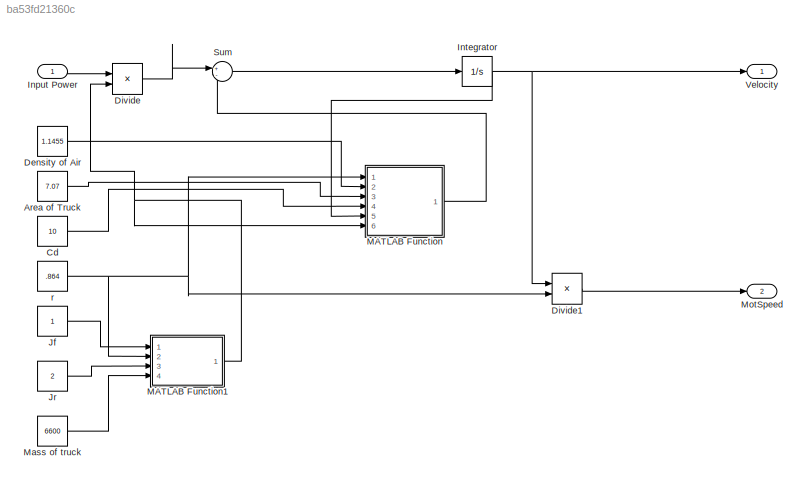
MODEL slx_ba53fd21360c
KIND model
CONFIG AbsTol = auto
CONFIG EnableMultiTasking = off
CONFIG FixedStep = auto
CONFIG MaxStep = auto
CONFIG MinStep = auto
CONFIG RelTol = 1e-3
CONFIG SampleTimeConstraint = Unconstrained
CONFIG Solver = VariableStepAuto
CONFIG SolverName = VariableStepAuto
CONFIG StartTime = 0.0
CONFIG StopTime = 10.0
BLOCK [Constant] Area of Truck
  Value = 7.07
BLOCK [Constant] Cd
  Value = 10
BLOCK [Constant] Density of Air
  Value = 1.1455
BLOCK [Product] Divide
  Inputs = */
  Ports = [2, 1]
BLOCK [Product] Divide1
  Inputs = */
  Ports = [2, 1]
BLOCK [Inport] Input Power
BLOCK [Integrator] Integrator
  Ports = [1, 1]
BLOCK [Constant] Jf
BLOCK [Constant] Jr
  Value = 2
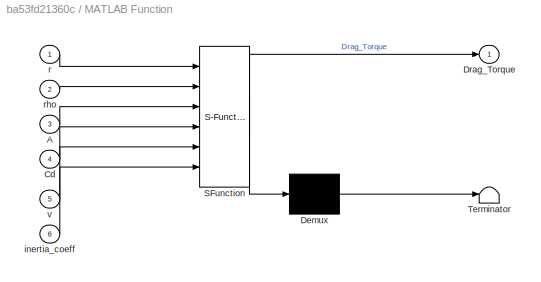
BLOCK [SubSystem] MATLAB Function
  ErrorFcn = Stateflow.Translate.translate
  PermitHierarchicalResolution = ExplicitOnly
  Ports = [6, 1]
  RequestExecContextInheritance = off
  SFBlockType = MATLAB Function
  TreatAsAtomicUnit = on
BLOCK [Demux] MATLAB Function/ Demux 
  Outputs = 1
  Ports = [1, 1]
BLOCK [S-Function] MATLAB Function/ SFunction 
  EnableBusSupport = on
  FunctionName = sf_sfun
  PortCounts = [6 2]
  Ports = [6, 2]
  SFcnIsStateOwnerBlock = off
  SFunctionDeploymentMode = off
  Tag = Stateflow S-Function 2
BLOCK [Terminator] MATLAB Function/ Terminator 
BLOCK [Inport] MATLAB Function/A
  Port = 3
BLOCK [Inport] MATLAB Function/Cd
  Port = 4
BLOCK [Outport] MATLAB Function/Drag_Torque
BLOCK [Inport] MATLAB Function/inertia_coeff
  Port = 6
BLOCK [Inport] MATLAB Function/r
BLOCK [Inport] MATLAB Function/rho
  Port = 2
BLOCK [Inport] MATLAB Function/v
  Port = 5
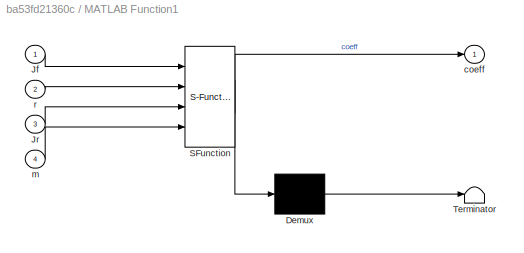
BLOCK [SubSystem] MATLAB Function1
  ErrorFcn = Stateflow.Translate.translate
  PermitHierarchicalResolution = ExplicitOnly
  Ports = [4, 1]
  RequestExecContextInheritance = off
  SFBlockType = MATLAB Function
  TreatAsAtomicUnit = on
BLOCK [Demux] MATLAB Function1/ Demux 
  Outputs = 1
  Ports = [1, 1]
BLOCK [S-Function] MATLAB Function1/ SFunction 
  EnableBusSupport = on
  FunctionName = sf_sfun
  PortCounts = [4 2]
  Ports = [4, 2]
  SFcnIsStateOwnerBlock = off
  SFunctionDeploymentMode = off
  Tag = Stateflow S-Function 1
BLOCK [Terminator] MATLAB Function1/ Terminator 
BLOCK [Inport] MATLAB Function1/Jf
BLOCK [Inport] MATLAB Function1/Jr
  Port = 3
BLOCK [Outport] MATLAB Function1/coeff
BLOCK [Inport] MATLAB Function1/m
  Port = 4
BLOCK [Inport] MATLAB Function1/r
  Port = 2
BLOCK [Constant] Mass of truck
  Value = 6600
BLOCK [Outport] MotSpeed
  Port = 2
BLOCK [Sum] Sum
  Inputs = +-
  Ports = [2, 1]
BLOCK [Outport] Velocity
BLOCK [Constant] r
  Value = .864
LINE Area of Truck:1 -> MATLAB Function:3
LINE Cd:1 -> MATLAB Function:4
LINE Density of Air:1 -> MATLAB Function:2
LINE Divide1:1 -> MotSpeed:1
LINE Divide:1 -> Sum:1
LINE Input Power:1 -> Divide:1
NET Integrator:1 -> Divide1:1, MATLAB Function:5, Velocity:1
LINE Jf:1 -> MATLAB Function1:1
LINE Jr:1 -> MATLAB Function1:3
NET MATLAB Function1:1 -> Divide:2, MATLAB Function:6
LINE MATLAB Function:1 -> Sum:2
LINE Mass of truck:1 -> MATLAB Function1:4
LINE Sum:1 -> Integrator:1
NET r:1 -> Divide1:2, MATLAB Function1:2, MATLAB Function:1
note: NET lines group one-source signal fan-out (src -> all destinations, sorted); 1:1 wires keep LINE
CHART MATLAB Function1 states=1 transitions=1
  STATE_LABEL 'eML_blk_kernel()'
  STATE_LABEL 'SCRIPT:\nfunction coeff= fcn(Jf,r,Jr,m)\nout=(Jf/r+Jr+m*r);\ncoeff=out;\n'
CHART MATLAB Function states=1 transitions=1
  STATE_LABEL 'eML_blk_kernel()'
  STATE_LABEL 'SCRIPT:\nfunction Drag_Torque = fcn(r,rho,A,Cd,v,inertia_coeff)\ncoeff=1/2*rho*A*Cd*r/inertia_coeff;\nDrag_Torque=coeff*v^2;\n'
CHART  states=0 transitions=0
CHART  states=0 transitions=0
